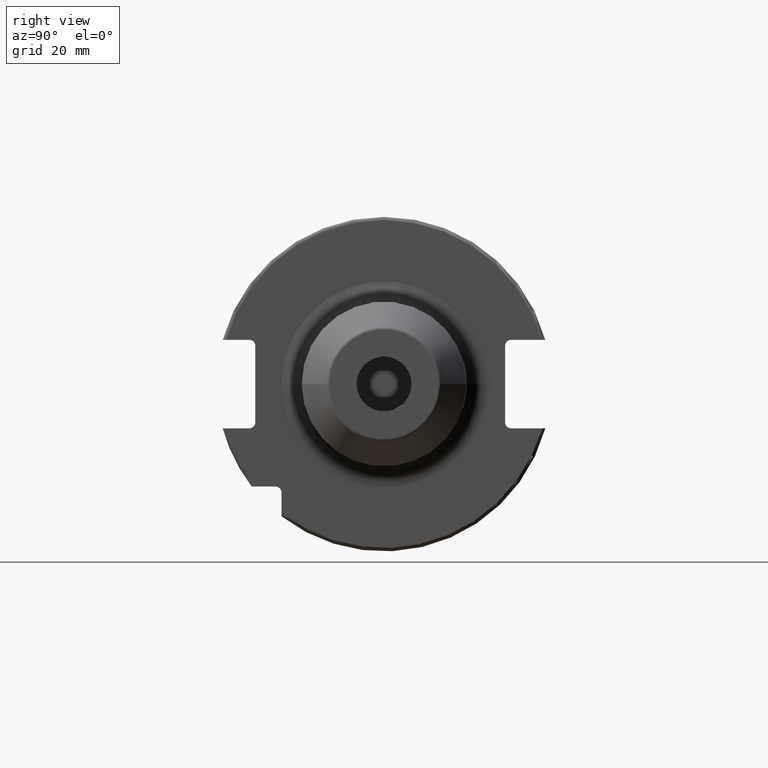
[diagram: clean part render]
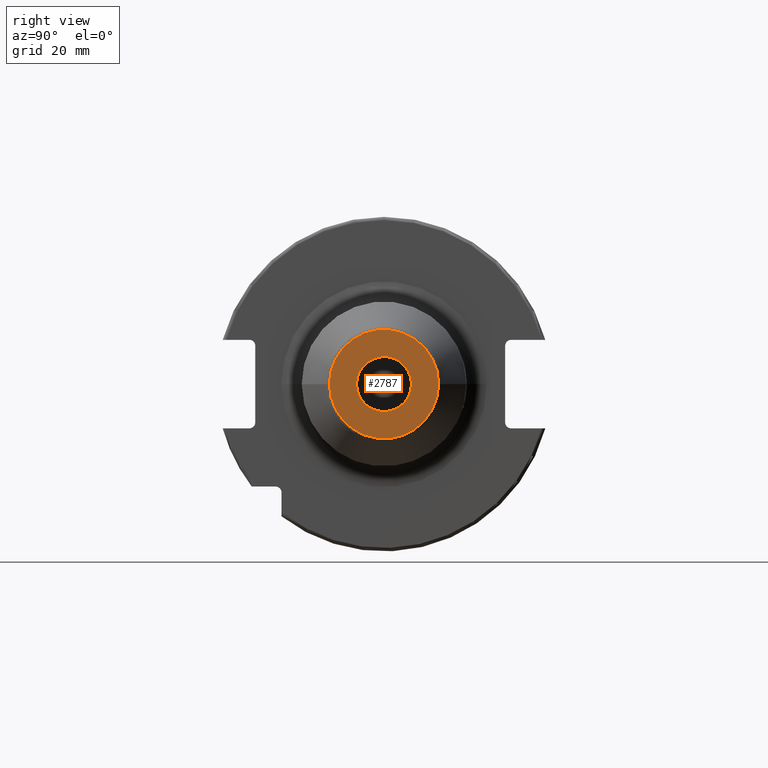
[diagram: same view with one face highlighted and labeled with its STEP entity id]
A machine part, right view. The second image highlights one B-rep face of the part: STEP entity #2787.
In plain terms, the highlighted planar face has unit normal (1, 0, 0).
Its self-contained STEP definition (entity closure, byte-faithful):
#1087=CARTESIAN_POINT('',(6.3E1,0.E0,0.E0));
#1088=DIRECTION('',(1.E0,0.E0,0.E0));
#1089=DIRECTION('',(0.E0,1.E0,0.E0));
#1090=AXIS2_PLACEMENT_3D('',#1087,#1088,#1089);
#1092=CARTESIAN_POINT('',(6.3E1,0.E0,0.E0));
#1093=DIRECTION('',(1.E0,0.E0,0.E0));
#1094=DIRECTION('',(0.E0,-1.E0,0.E0));
#1095=AXIS2_PLACEMENT_3D('',#1092,#1093,#1094);
#1097=CARTESIAN_POINT('',(6.3E1,0.E0,0.E0));
#1098=DIRECTION('',(-1.E0,0.E0,0.E0));
#1099=DIRECTION('',(0.E0,1.E0,0.E0));
#1100=AXIS2_PLACEMENT_3D('',#1097,#1098,#1099);
#1102=CARTESIAN_POINT('',(6.3E1,0.E0,0.E0));
#1103=DIRECTION('',(-1.E0,0.E0,0.E0));
#1104=DIRECTION('',(0.E0,-1.E0,0.E0));
#1105=AXIS2_PLACEMENT_3D('',#1102,#1103,#1104);
#1623=CARTESIAN_POINT('',(6.3E1,-8.E0,0.E0));
#1624=VERTEX_POINT('',#1623);
#1633=CARTESIAN_POINT('',(6.3E1,8.E0,0.E0));
#1634=VERTEX_POINT('',#1633);
#1655=CARTESIAN_POINT('',(6.3E1,1.591709623135E1,0.E0));
#1656=CARTESIAN_POINT('',(6.3E1,-1.591709623135E1,-1.803578556529E-14));
#1657=VERTEX_POINT('',#1655);
#1658=VERTEX_POINT('',#1656);
#2772=CARTESIAN_POINT('',(6.3E1,0.E0,0.E0));
#2773=DIRECTION('',(1.E0,0.E0,0.E0));
#2774=DIRECTION('',(0.E0,-1.E0,0.E0));
#2775=AXIS2_PLACEMENT_3D('',#2772,#2773,#2774);
#2776=PLANE('',#2775);
#2778=ORIENTED_EDGE('',*,*,#2777,.T.);
#2780=ORIENTED_EDGE('',*,*,#2779,.T.);
#2781=EDGE_LOOP('',(#2778,#2780));
#2782=FACE_OUTER_BOUND('',#2781,.F.);
#2783=ORIENTED_EDGE('',*,*,#2756,.T.);
#2784=ORIENTED_EDGE('',*,*,#2735,.T.);
#2785=EDGE_LOOP('',(#2783,#2784));
#2786=FACE_BOUND('',#2785,.F.);
#2787=ADVANCED_FACE('',(#2782,#2786),#2776,.T.);
#1091=CIRCLE('',#1090,8.E0);
#1096=CIRCLE('',#1095,8.E0);
#1101=CIRCLE('',#1100,1.591709623135E1);
#1106=CIRCLE('',#1105,1.591709623135E1);
#2735=EDGE_CURVE('',#1624,#1634,#1096,.T.);
#2756=EDGE_CURVE('',#1634,#1624,#1091,.T.);
#2777=EDGE_CURVE('',#1657,#1658,#1101,.T.);
#2779=EDGE_CURVE('',#1658,#1657,#1106,.T.);